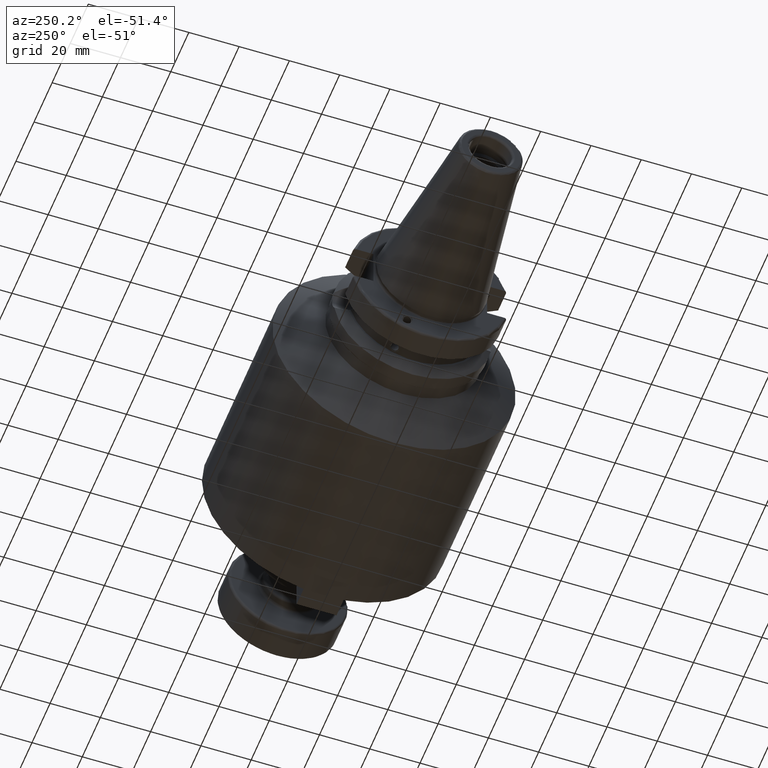
[diagram: clean part render]
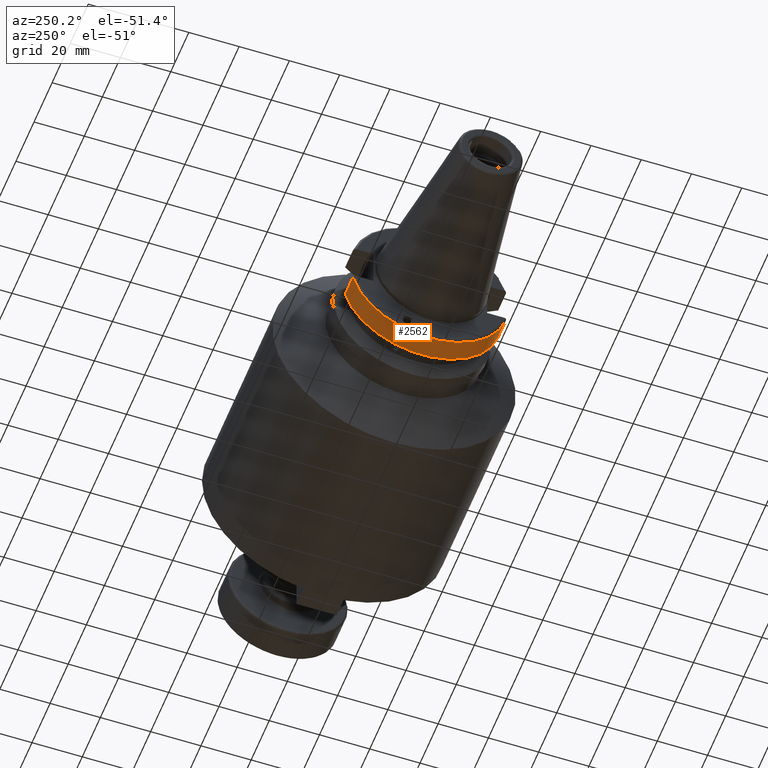
[diagram: same view with one face highlighted and labeled with its STEP entity id]
A machine part, auxiliary view. The second image highlights one B-rep face of the part: STEP entity #2562.
In plain terms, the highlighted cylindrical surface (partial cylindrical patch) has radius 31.5 mm, axis along (1, 0, 0).
Its self-contained STEP definition (entity closure, byte-faithful):
#596=CYLINDRICAL_SURFACE('',#2908,31.5);
#656=CIRCLE('',#2907,31.5000000000001);
#657=CIRCLE('',#2909,31.5);
#819=FACE_OUTER_BOUND('',#958,.T.);
#958=EDGE_LOOP('',(#2097,#2098,#2099,#2100));
#1101=LINE('',#4391,#1238);
#1108=LINE('',#4456,#1245);
#1238=VECTOR('',#3384,10.);
#1245=VECTOR('',#3427,10.);
#1410=VERTEX_POINT('',#4379);
#1411=VERTEX_POINT('',#4390);
#1422=VERTEX_POINT('',#4448);
#1423=VERTEX_POINT('',#4454);
#1650=EDGE_CURVE('',#1411,#1410,#1101,.T.);
#1669=EDGE_CURVE('',#1411,#1422,#656,.T.);
#1671=EDGE_CURVE('',#1410,#1423,#657,.T.);
#1672=EDGE_CURVE('',#1423,#1422,#1108,.T.);
#2097=ORIENTED_EDGE('',*,*,#1650,.T.);
#2098=ORIENTED_EDGE('',*,*,#1671,.T.);
#2099=ORIENTED_EDGE('',*,*,#1672,.T.);
#2100=ORIENTED_EDGE('',*,*,#1669,.F.);
#2562=ADVANCED_FACE('',(#819),#596,.T.);
#2907=AXIS2_PLACEMENT_3D('',#4449,#3421,#3422);
#2908=AXIS2_PLACEMENT_3D('',#4453,#3423,#3424);
#2909=AXIS2_PLACEMENT_3D('',#4455,#3425,#3426);
#3384=DIRECTION('',(-1.,0.,0.));
#3421=DIRECTION('center_axis',(1.,0.,0.));
#3422=DIRECTION('ref_axis',(0.,0.,-1.));
#3423=DIRECTION('center_axis',(1.,0.,0.));
#3424=DIRECTION('ref_axis',(0.,1.,0.));
#3425=DIRECTION('center_axis',(1.,0.,0.));
#3426=DIRECTION('ref_axis',(0.,0.,-1.));
#3427=DIRECTION('',(1.,0.,0.));
#4379=CARTESIAN_POINT('',(3.,-30.4540227227866,-8.05));
#4390=CARTESIAN_POINT('',(11.5690363073382,-30.4540227227866,-8.05));
#4391=CARTESIAN_POINT('',(7.28451815366907,-30.4540227227866,-8.05));
#4448=CARTESIAN_POINT('',(11.5690363073382,30.4540227227866,-8.05));
#4449=CARTESIAN_POINT('Origin',(11.5690363073382,0.,0.));
#4453=CARTESIAN_POINT('Origin',(7.28451815366907,0.,0.));
#4454=CARTESIAN_POINT('',(3.,30.4540227227866,-8.05));
#4455=CARTESIAN_POINT('Origin',(3.,0.,0.));
#4456=CARTESIAN_POINT('',(7.28451815366907,30.4540227227866,-8.05));